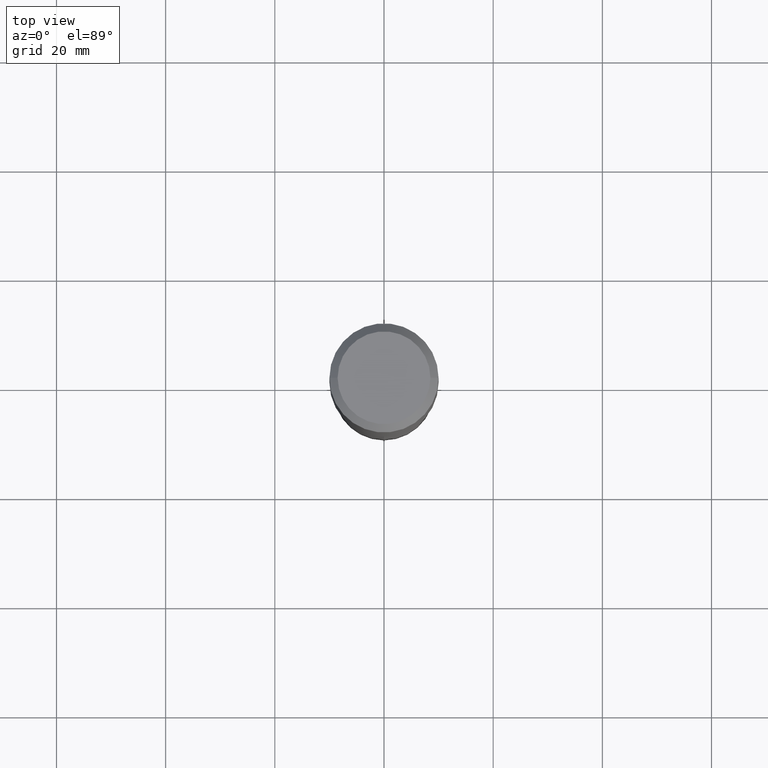
[diagram: clean part render]
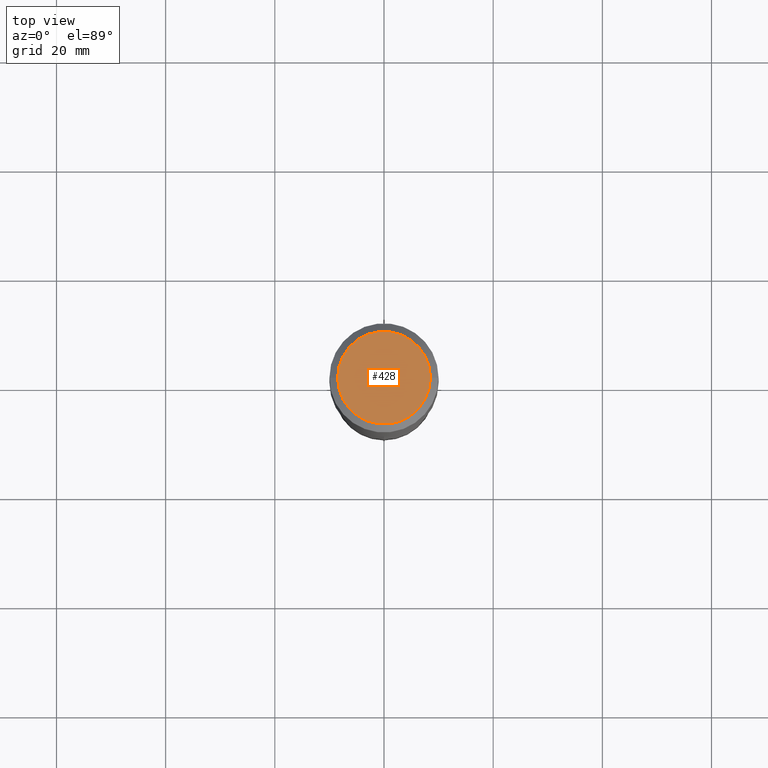
[diagram: same view with one face highlighted and labeled with its STEP entity id]
A machine part, top view. The second image highlights one B-rep face of the part: STEP entity #428.
In plain terms, the highlighted planar face has unit normal (0, -0, -1).
Its self-contained STEP definition (entity closure, byte-faithful):
#6 = CARTESIAN_POINT ( 'NONE',  ( -0.3346450000000000258, 2.439908260507010921E-15, 4.096137381431419798E-18 ) ) ;
#19 = DIRECTION ( 'NONE',  ( -1.000000000000000000, 6.982962677686265922E-15, -4.876176775795935793E-29 ) ) ;
#46 = DIRECTION ( 'NONE',  ( -2.445468806185136597E-29, 3.491481338843145583E-15, 1.000000000000000000 ) ) ;
#50 = DIRECTION ( 'NONE',  ( 2.438088387897960049E-29, -3.491481338843145188E-15, -1.000000000000000000 ) ) ;
#86 = EDGE_LOOP ( 'NONE', ( #479, #401 ) ) ;
#90 = CIRCLE ( 'NONE', #441, 0.3346450000000000258 ) ;
#124 = FACE_OUTER_BOUND ( 'NONE', #86, .T. ) ;
#151 = VERTEX_POINT ( 'NONE', #6 ) ;
#168 = CARTESIAN_POINT ( 'NONE',  ( -1.001697619218025096E-46, 1.430158722866394644E-32, 4.096137381448122233E-18 ) ) ;
#211 = DIRECTION ( 'NONE',  ( 1.000000000000000000, -6.982962677686267499E-15, 4.876152824003125403E-29 ) ) ;
#214 = VERTEX_POINT ( 'NONE', #348 ) ;
#232 = CIRCLE ( 'NONE', #409, 0.3346450000000000258 ) ;
#288 = CARTESIAN_POINT ( 'NONE',  ( -1.001697619218025096E-46, 1.430158722866394644E-32, 4.096137381448122233E-18 ) ) ;
#290 = DIRECTION ( 'NONE',  ( -2.445468806185136597E-29, 3.491481338843145583E-15, 1.000000000000000000 ) ) ;
#301 = AXIS2_PLACEMENT_3D ( 'NONE', #351, #50, #19 ) ;
#340 = EDGE_CURVE ( 'NONE', #214, #151, #90, .T. ) ;
#348 = CARTESIAN_POINT ( 'NONE',  ( 0.3346450000000000258, -2.601499422326145188E-15, 4.096137381465388580E-18 ) ) ;
#351 = CARTESIAN_POINT ( 'NONE',  ( -5.008488096090125481E-47, 7.150793614331973222E-33, 2.048068690724061116E-18 ) ) ;
#358 = DIRECTION ( 'NONE',  ( 1.000000000000000000, -6.982962677686267499E-15, 4.876152824003125403E-29 ) ) ;
#385 = PLANE ( 'NONE',  #301 ) ;
#401 = ORIENTED_EDGE ( 'NONE', *, *, #340, .T. ) ;
#409 = AXIS2_PLACEMENT_3D ( 'NONE', #288, #290, #211 ) ;
#428 = ADVANCED_FACE ( 'NONE', ( #124 ), #385, .F. ) ;
#441 = AXIS2_PLACEMENT_3D ( 'NONE', #168, #46, #358 ) ;
#452 = EDGE_CURVE ( 'NONE', #151, #214, #232, .T. ) ;
#479 = ORIENTED_EDGE ( 'NONE', *, *, #452, .T. ) ;